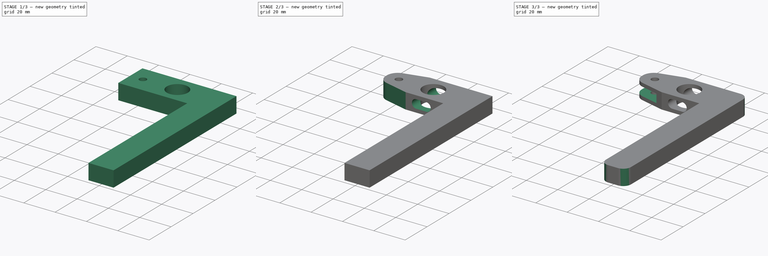
[diagram: build sequence overview — one tinted view per stage of 3, left to right]
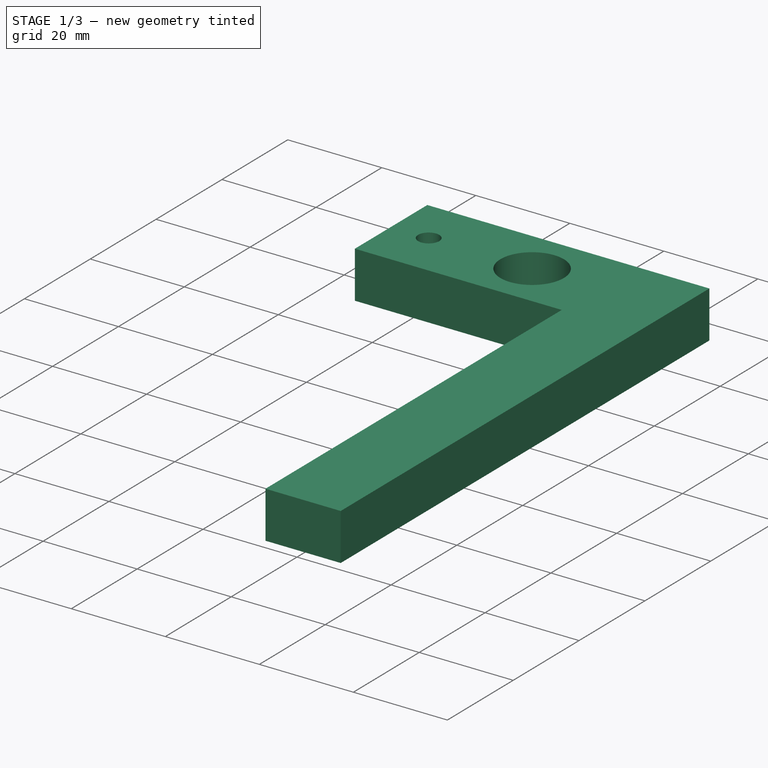
[diagram: stage 1 of 3 — iso view after this stage's code; geometry added in this stage tinted green]
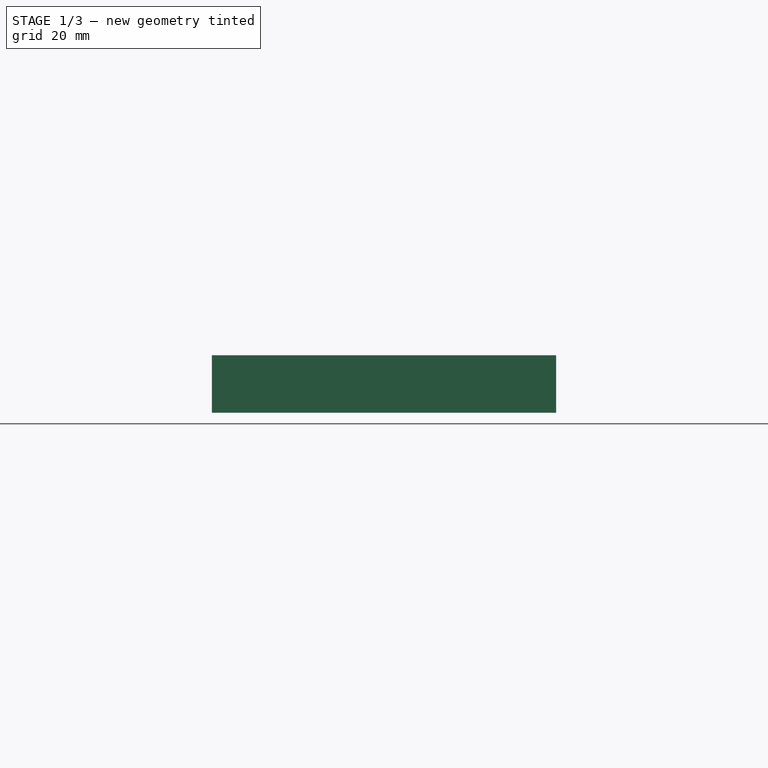
[diagram: stage 1 of 3 — front view after this stage's code; geometry added in this stage tinted green]
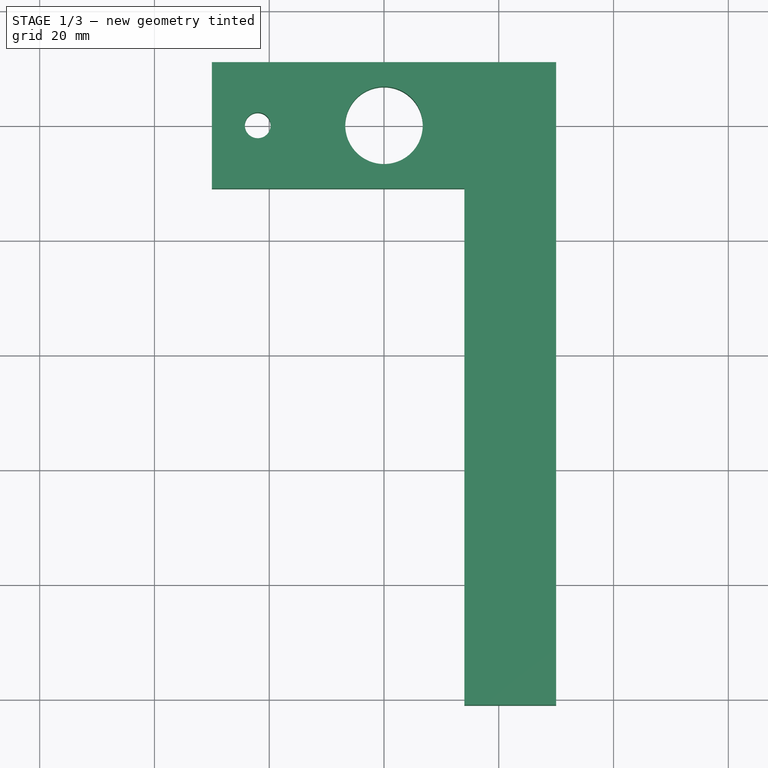
[diagram: stage 1 of 3 — top view after this stage's code; geometry added in this stage tinted green]
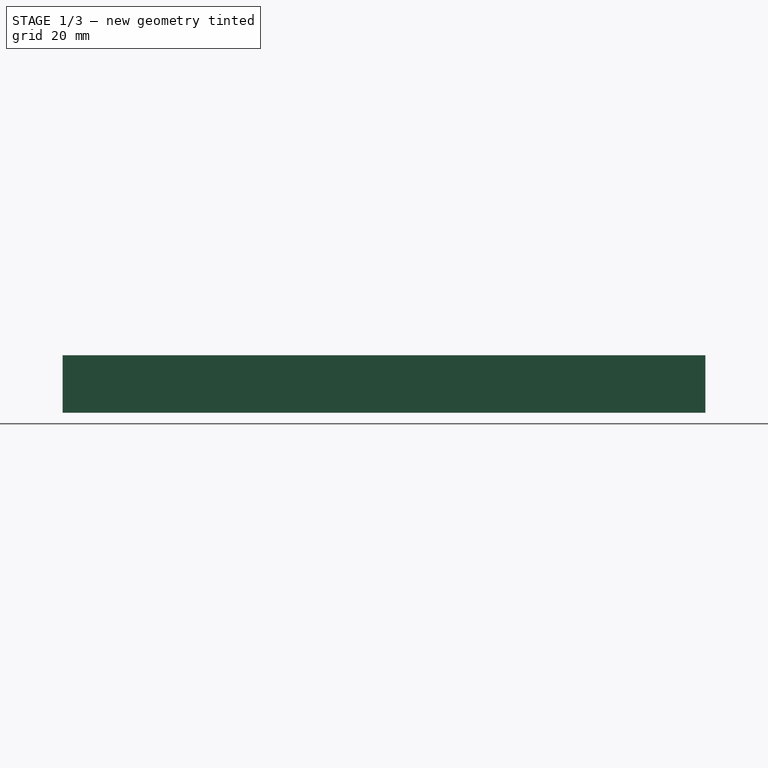
[diagram: stage 1 of 3 — right view after this stage's code; geometry added in this stage tinted green]
FCSTD DOCUMENT  (FreeCAD 0.20R29603 (Git))
Label: handle
License: All rights reserved
LicenseURL: http://en.wikipedia.org/wiki/All_rights_reserved
objects: Sketcher::SketchObject×4, PartDesign::Pocket×3, PartDesign::Fillet×2, PartDesign::Pad×1, PartDesign::Chamfer×1, PartDesign::Body×1
note: 19 computed .brp shape members not serialized (recipe doc carries the construction recipe); baked Part::Feature solids carry a one-line shape summary decoded from their .brp

FEATURE [Sketcher::SketchObject] Sketch
  FullyConstrained = true
  MapMode = 5
  Support = -> [XY_Plane]
  sketch-geometry (8):
    g0: LineSegment StartX=-30 StartY=11 StartZ=0 EndX=-30 EndY=-11 EndZ=0
    g1: LineSegment StartX=-30 StartY=-11 StartZ=0 EndX=14 EndY=-11 EndZ=0
    g2: LineSegment StartX=30 StartY=-11 StartZ=0 EndX=30 EndY=11 EndZ=0
    g3: LineSegment StartX=30 StartY=11 StartZ=0 EndX=-30 EndY=11 EndZ=0
    g4: GeomPoint X=0 Y=0 Z=0
    g5: LineSegment StartX=14 StartY=-11 StartZ=0 EndX=14 EndY=-101 EndZ=0
    g6: LineSegment StartX=14 StartY=-101 StartZ=0 EndX=30 EndY=-101 EndZ=0
    g7: LineSegment StartX=30 StartY=-101 StartZ=0 EndX=30 EndY=-11 EndZ=0
  constraints (22):
    c: Coincident(g0,g1)
    c: Coincident(g2,g3)
    c: Coincident(g3,g0)
    c: Horizontal(g1)
    c: Horizontal(g3)
    c: Vertical(g0)
    c: Coincident(g4,g-1)
    c: DistanceY(g2,g2) = 22
    c: DistanceX(g3,g3) = 60
    c: Coincident(g5,g6)
    c: Coincident(g6,g7)
    c: Horizontal(g6)
    c: Vertical(g5)
    c: Vertical(g7)
    c: DistanceY(g7,g7) = 90
    c: Symmetric(g0,g2,g4)
    c: Symmetric(g0,g2,g4)
    c: DistanceX(g1,g1) = 44
    c: DistanceY(g5,g5) = 90
    c: DistanceX(g-1,g5) = 14
    c: DistanceX(g6,g6) = 16
    c: DistanceY(g6,g-1) = 101
FEATURE [PartDesign::Pad] Pad
  Direction = (0,0,1)
  Length = 10
  Length2 = 10
  Midplane = true
  Profile = -> Sketch
  ReferenceAxis = -> Sketch [N_Axis]
  Type = 0
FEATURE [Sketcher::SketchObject] Sketch001
  FullyConstrained = true
  MapMode = 5
  Placement = pos=(0,0,5) rot=(0,0,1;0rad)
  Support = -> [Pad]
  sketch-geometry (2):
    g0: Circle CenterX=0 CenterY=0 CenterZ=0 NormalX=0 NormalY=0 NormalZ=1 AngleXU=0 Radius=6.75
    g1: Circle CenterX=-22 CenterY=0 CenterZ=0 NormalX=0 NormalY=0 NormalZ=1 AngleXU=0 Radius=2.25
  constraints (5):
    c: Coincident(g0,g-1)
    c: Diameter(g0) = 13.5
    c: PointOnObject(g1,g-1)
    c: Diameter(g1) = 4.5
    c: DistanceX(g1,g0) = 22
FEATURE [PartDesign::Pocket] Pocket
  BaseFeature = -> Pad
  Direction = (0,0,-1)
  Length = 5
  Length2 = 5
  Profile = -> Sketch001
  ReferenceAxis = -> Sketch001 [N_Axis]
  Type = 1
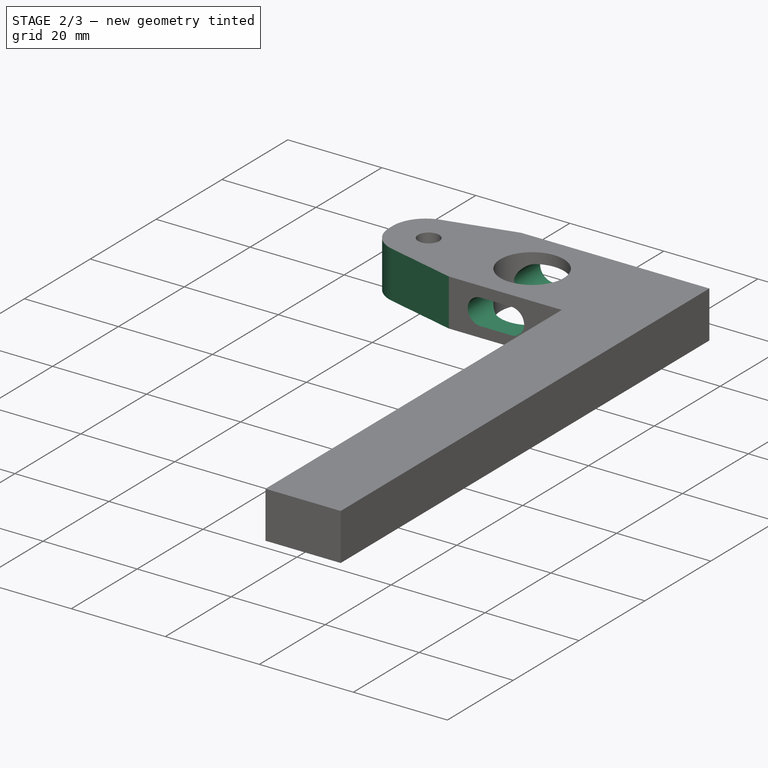
[diagram: stage 2 of 3 — iso view after this stage's code; geometry added in this stage tinted green]
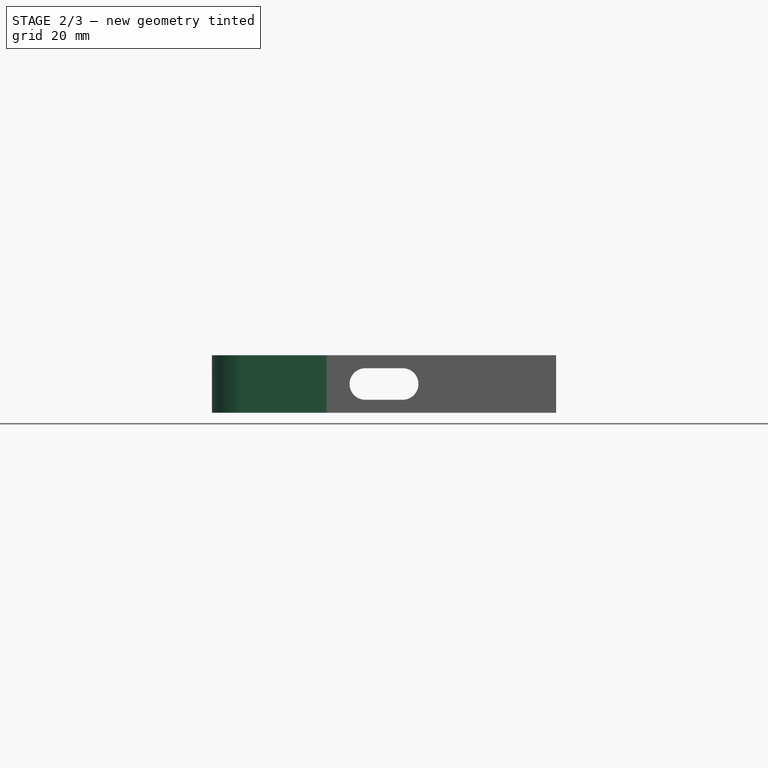
[diagram: stage 2 of 3 — front view after this stage's code; geometry added in this stage tinted green]
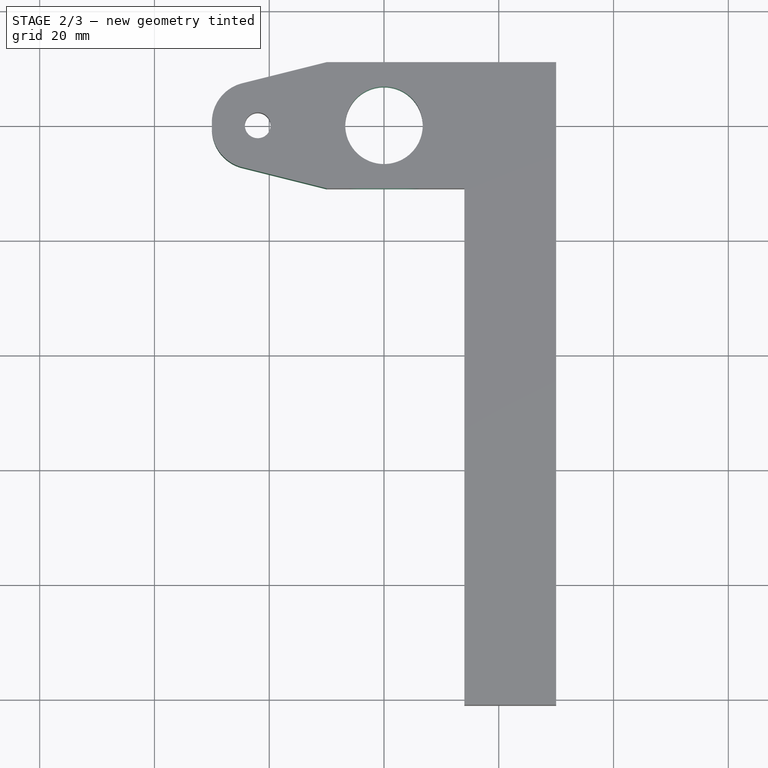
[diagram: stage 2 of 3 — top view after this stage's code; geometry added in this stage tinted green]
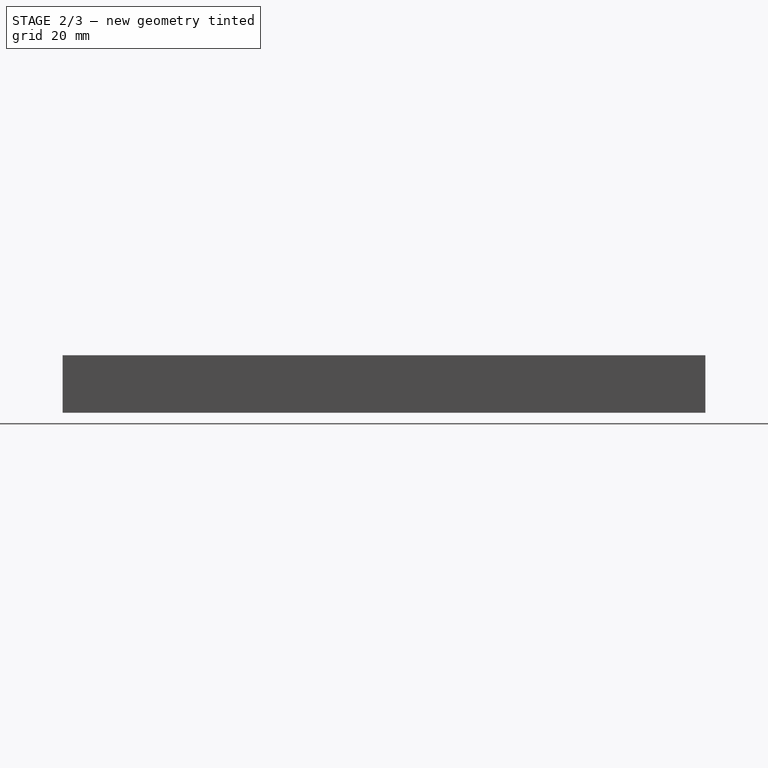
[diagram: stage 2 of 3 — right view after this stage's code; geometry added in this stage tinted green]
FEATURE [PartDesign::Chamfer] Chamfer
  Angle = 45
  Base = -> Pocket [Edge1,Edge2]
  BaseFeature = -> Pocket
  ChamferType = 1
  FlipDirection = false
  Size = 5
  Size2 = 20
  SupportTransform = false
  UseAllEdges = false
FEATURE [PartDesign::Fillet] Fillet
  Base = -> Chamfer [Edge3,Edge2]
  BaseFeature = -> Chamfer
  Radius = 7
  SupportTransform = false
  UseAllEdges = false
FEATURE [Sketcher::SketchObject] Sketch002
  FullyConstrained = false
  MapMode = 5
  Placement = pos=(0,11,0) rot=(0,0.707107,0.707107;3.14159rad)
  Support = -> [Fillet]
  sketch-geometry (13):
    g0: LineSegment StartX=-6 StartY=-7.4942e-12 StartZ=0 EndX=-6 EndY=-9.98728e-11 EndZ=0
    g1: LineSegment StartX=-3.25 StartY=-2.75 StartZ=0 EndX=3.25 EndY=-2.75 EndZ=0
    g2: LineSegment StartX=6 StartY=-7.368e-13 StartZ=0 EndX=6 EndY=5.336e-13 EndZ=0
    g3: LineSegment StartX=3.25 StartY=2.75 StartZ=0 EndX=-3.25 EndY=2.75 EndZ=0
    g4: GeomPoint X=3.1143e-12 Y=-4.15e-14 Z=0
    g5: ArcOfCircle CenterX=-3.25 CenterY=9.86913e-11 CenterZ=0 NormalX=0 NormalY=0 NormalZ=1 AngleXU=0 Radius=2.75 StartAngle=1.5708 EndAngle=3.14159
    g6: GeomPoint X=-6 Y=2.75 Z=0
    g7: ArcOfCircle CenterX=-3.25 CenterY=6.3126e-12 CenterZ=0 NormalX=0 NormalY=0 NormalZ=1 AngleXU=0 Radius=2.75 StartAngle=3.14159 EndAngle=4.71239
    g8: GeomPoint X=-6 Y=-2.75 Z=0
    g9: ArcOfCircle CenterX=3.25 CenterY=-9.87743e-11 CenterZ=0 NormalX=0 NormalY=0 NormalZ=1 AngleXU=0 Radius=2.75 StartAngle=4.71239 EndAngle=6.28319
    g10: GeomPoint X=6 Y=-2.75 Z=0
    g11: ArcOfCircle CenterX=3.25 CenterY=-6.3957e-12 CenterZ=0 NormalX=0 NormalY=0 NormalZ=1 AngleXU=0 Radius=2.75 StartAngle=2.472e-12 EndAngle=1.5708
    g12: GeomPoint X=6 Y=2.75 Z=0
  constraints (6):
    c: Symmetric(g10,g6,g4)
    c: Tangent(g0,g5) = -1.5708
    c: Tangent(g0,g7) = -1.5708
    c: Tangent(g2,g9) = -1.5708
    c: Symmetric(g5,g9,g4)
    c: Symmetric(g7,g11,g4)
FEATURE [PartDesign::Pocket] Pocket001
  BaseFeature = -> Fillet
  Direction = (0,-1,2e-16)
  Length = 5
  Length2 = 5
  Midplane = true
  Profile = -> Sketch002
  ReferenceAxis = -> Sketch002 [N_Axis]
  Type = 1
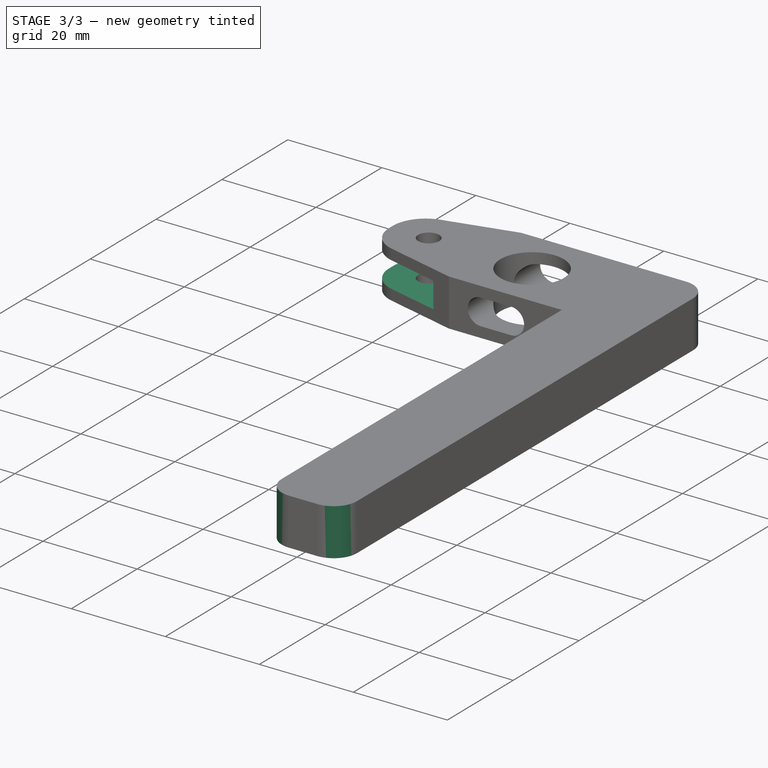
[diagram: stage 3 of 3 — iso view after this stage's code; geometry added in this stage tinted green]
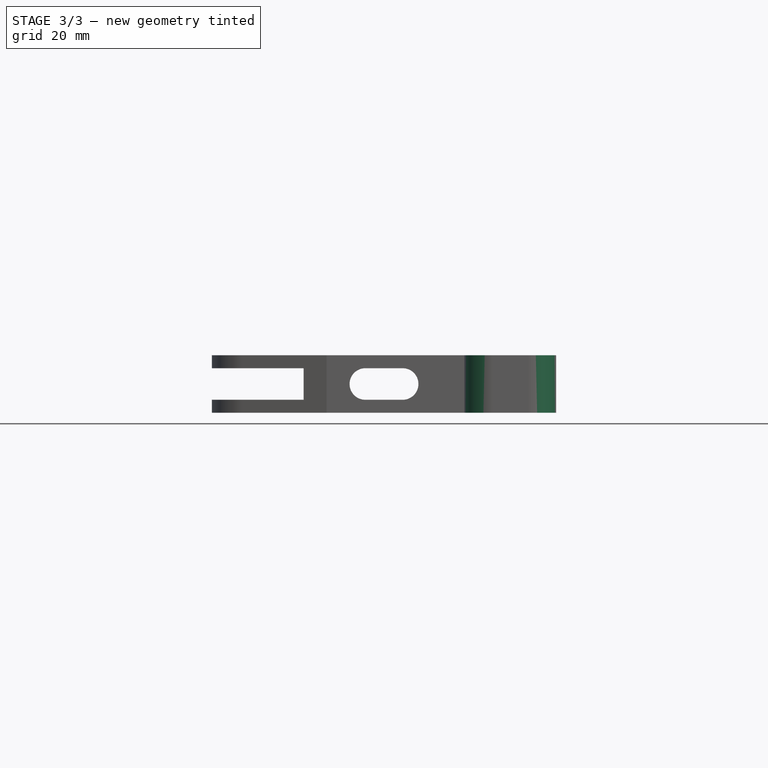
[diagram: stage 3 of 3 — front view after this stage's code; geometry added in this stage tinted green]
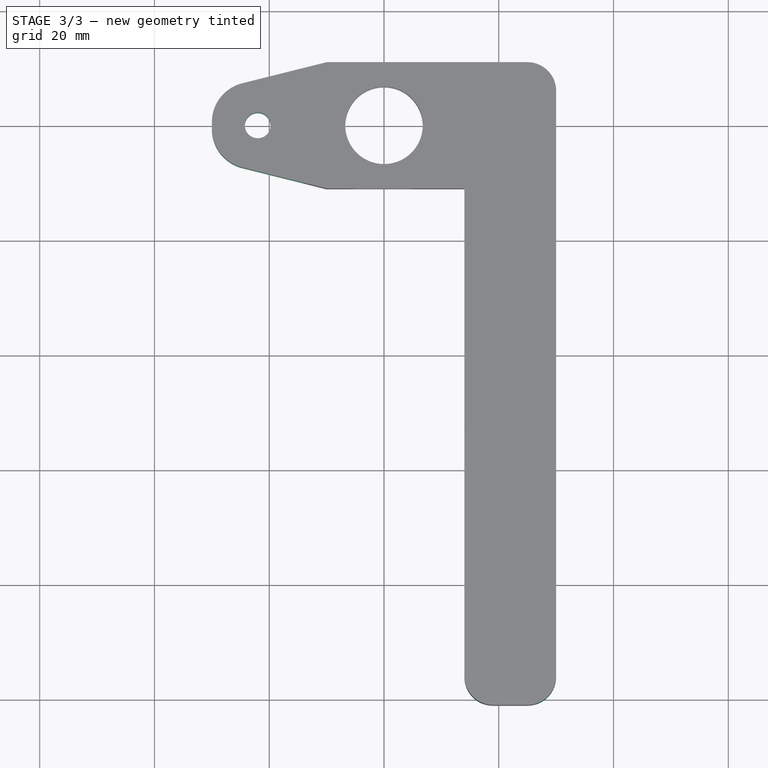
[diagram: stage 3 of 3 — top view after this stage's code; geometry added in this stage tinted green]
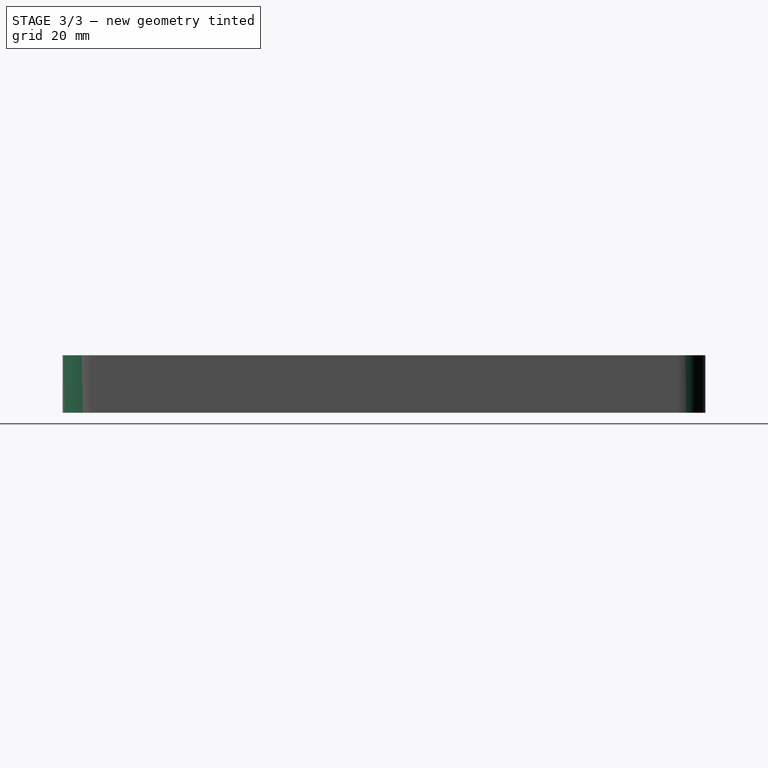
[diagram: stage 3 of 3 — right view after this stage's code; geometry added in this stage tinted green]
FEATURE [Sketcher::SketchObject] Sketch003
  FullyConstrained = true
  MapMode = 5
  Placement = pos=(0,11,0) rot=(0,0.707107,0.707107;3.14159rad)
  Support = -> [Pocket001]
  sketch-geometry (5):
    g0: LineSegment StartX=14 StartY=2.75 StartZ=0 EndX=14 EndY=-2.75 EndZ=0
    g1: LineSegment StartX=14 StartY=-2.75 StartZ=0 EndX=30 EndY=-2.75 EndZ=0
    g2: LineSegment StartX=30 StartY=-2.75 StartZ=0 EndX=30 EndY=2.75 EndZ=0
    g3: LineSegment StartX=30 StartY=2.75 StartZ=0 EndX=14 EndY=2.75 EndZ=0
    g4: GeomPoint X=22 Y=0 Z=0
  constraints (13):
    c: Coincident(g0,g1)
    c: Coincident(g1,g2)
    c: Coincident(g2,g3)
    c: Coincident(g3,g0)
    c: Horizontal(g1)
    c: Horizontal(g3)
    c: Vertical(g0)
    c: Vertical(g2)
    c: Symmetric(g1,g0,g4)
    c: PointOnObject(g4,g-1)
    c: DistanceY(g2,g2) = 5.5
    c: DistanceX(g-1,g4) = 22
    c: DistanceX(g1,g1) = 16
FEATURE [PartDesign::Pocket] Pocket002
  BaseFeature = -> Pocket001
  Direction = (0,-1,2e-16)
  Length = 10
  Length2 = 5
  Midplane = true
  Profile = -> Sketch003
  ReferenceAxis = -> Sketch003 [N_Axis]
  Type = 1
FEATURE [PartDesign::Fillet] Fillet001
  Base = -> Pocket002 [Edge53,Edge55,Edge35]
  BaseFeature = -> Pocket002
  Radius = 5
  SupportTransform = false
  UseAllEdges = false
FEATURE [PartDesign::Body] Body
  Group = -> [Sketch,Pad,Sketch001,Pocket,Chamfer,Fillet,Sketch002,Pocket001,Sketch003,Pocket002,Fillet001]
  Origin = -> Origin
  Tip = -> Fillet001
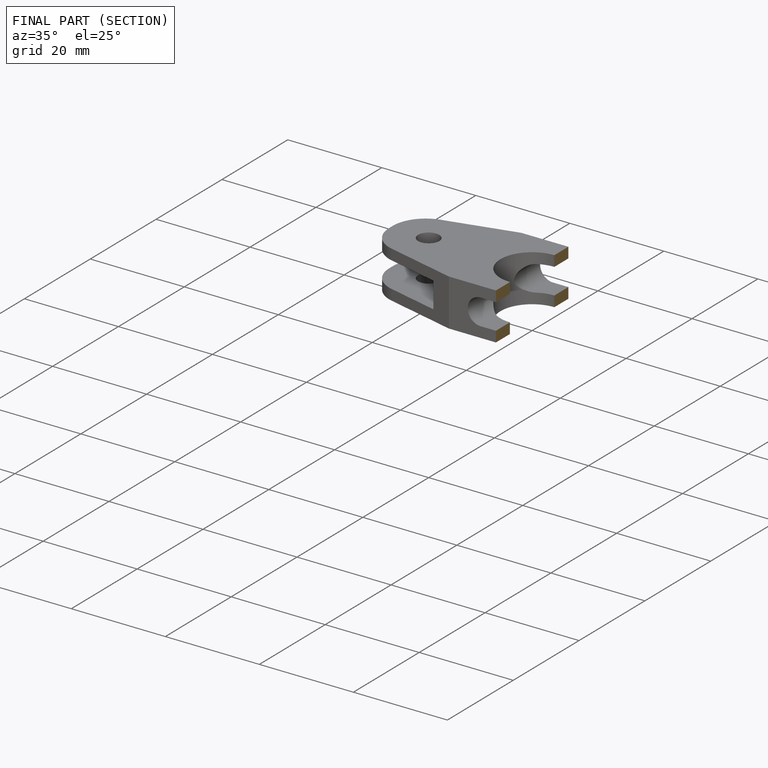
[diagram: finished part — half-section view (interior)]
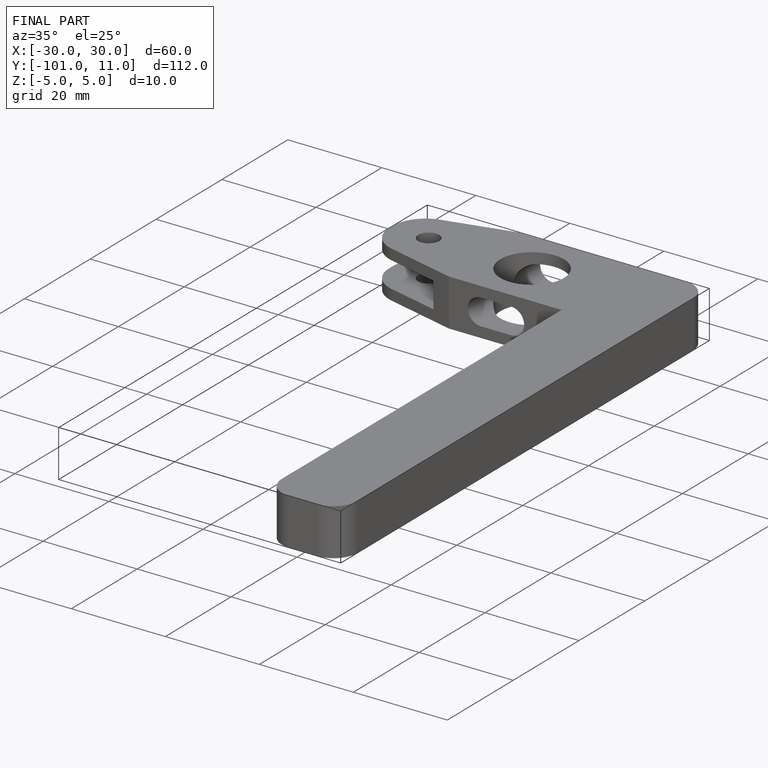
[diagram: finished part — iso view with bounding-box wireframe]
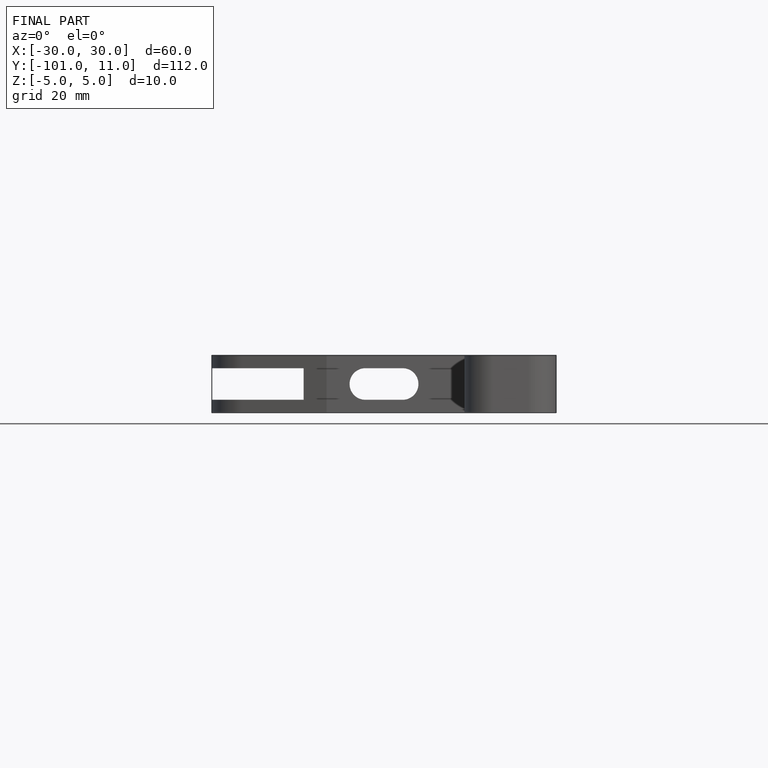
[diagram: finished part — front view with bounding-box wireframe]
